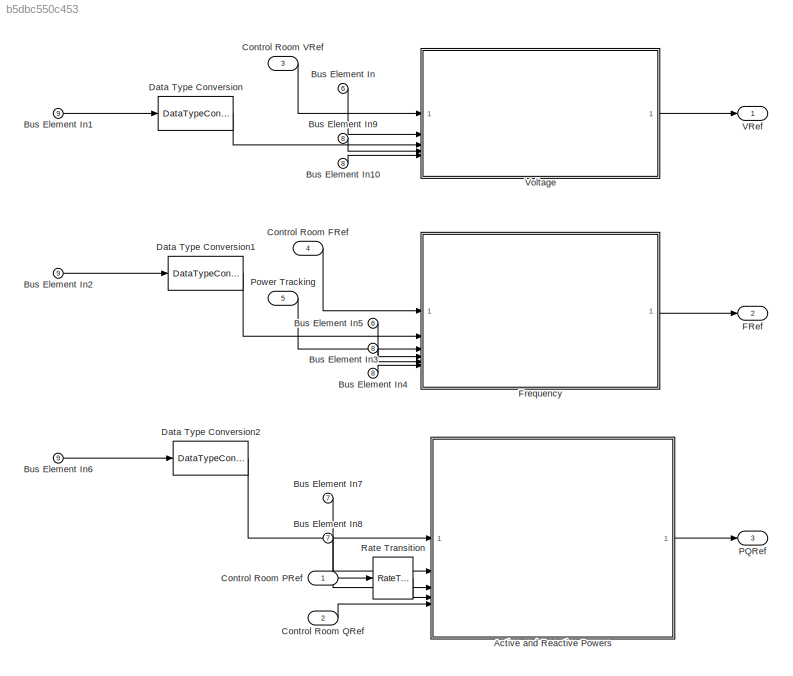
MODEL slx_b5dbc550c453
KIND model
CONFIG AbsTol = auto
CONFIG EnableMultiTasking = off
CONFIG FixedStep = auto
CONFIG MaxStep = auto
CONFIG MinStep = auto
CONFIG RelTol = 1e-3
CONFIG SampleTimeConstraint = Unconstrained
CONFIG SolverName = FixedStepAuto
CONFIG StartTime = 0.0
CONFIG StopTime = 10.0
WORKSPACE source: mxarray member
WORKSPACE GridFrequency = 60
WORKSPACE pLowerLimit = 0
WORKSPACE pUpperLimit = 0
WORKSPACE qLowerLimit = 0
WORKSPACE qUpperLimit = 0
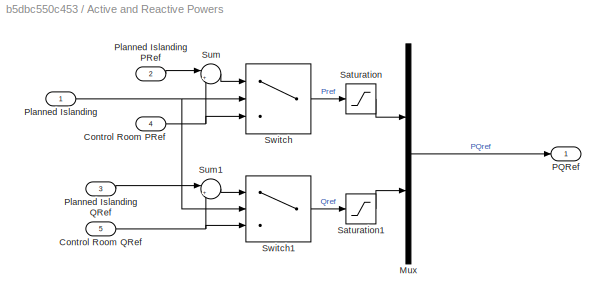
BLOCK [SubSystem] Active and Reactive Powers
BLOCK [Inport] Active and Reactive Powers/Control Room PRef
  Port = 4
BLOCK [Inport] Active and Reactive Powers/Control Room QRef
  Port = 5
BLOCK [Mux] Active and Reactive Powers/Mux
  DisplayOption = bar
  Inputs = 2
BLOCK [Outport] Active and Reactive Powers/PQRef
BLOCK [Inport] Active and Reactive Powers/Planned Islanding
BLOCK [Inport] Active and Reactive Powers/Planned Islanding PRef
  Port = 2
BLOCK [Inport] Active and Reactive Powers/Planned Islanding QRef
  Port = 3
BLOCK [Saturate] Active and Reactive Powers/Saturation
  LowerLimit = pLowerLimit
  UpperLimit = pUpperLimit
BLOCK [Saturate] Active and Reactive Powers/Saturation1
  LowerLimit = qLowerLimit
  UpperLimit = qUpperLimit
BLOCK [Sum] Active and Reactive Powers/Sum
  Inputs = |++
BLOCK [Sum] Active and Reactive Powers/Sum1
  Inputs = |++
BLOCK [Switch] Active and Reactive Powers/Switch
  Criteria = u2 > Threshold
  InputSameDT = off
  SaturateOnIntegerOverflow = off
  Threshold = 0.5
BLOCK [Switch] Active and Reactive Powers/Switch1
  Criteria = u2 > Threshold
  InputSameDT = off
  SaturateOnIntegerOverflow = off
  Threshold = 0.5
BLOCK [Inport] Bus Element In
  Port = 6
BLOCK [Inport] Bus Element In1
  Port = 9
BLOCK [Inport] Bus Element In10
  Port = 8
BLOCK [Inport] Bus Element In2
  Port = 9
BLOCK [Inport] Bus Element In3
  Port = 8
BLOCK [Inport] Bus Element In4
  Port = 8
BLOCK [Inport] Bus Element In5
  Port = 6
BLOCK [Inport] Bus Element In6
  Port = 9
BLOCK [Inport] Bus Element In7
  Port = 7
BLOCK [Inport] Bus Element In8
  Port = 7
BLOCK [Inport] Bus Element In9
  Port = 8
BLOCK [Inport] Control Room FRef
  Port = 4
BLOCK [Inport] Control Room PRef
BLOCK [Inport] Control Room QRef
  Port = 2
BLOCK [Inport] Control Room VRef
  Port = 3
BLOCK [DataTypeConversion] Data Type Conversion
  OutDataTypeStr = double
  RndMeth = Floor
  SaturateOnIntegerOverflow = off
BLOCK [DataTypeConversion] Data Type Conversion1
  OutDataTypeStr = double
  RndMeth = Floor
  SaturateOnIntegerOverflow = off
BLOCK [DataTypeConversion] Data Type Conversion2
  OutDataTypeStr = double
  RndMeth = Floor
  SaturateOnIntegerOverflow = off
BLOCK [Outport] FRef
  Port = 2
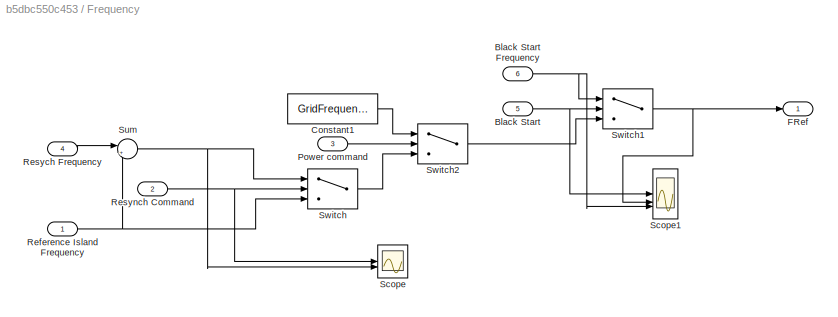
BLOCK [SubSystem] Frequency
BLOCK [Inport] Frequency/Black Start
  Port = 5
BLOCK [Inport] Frequency/Black Start Frequency
  Port = 6
BLOCK [Constant] Frequency/Constant1
  Value = GridFrequency
BLOCK [Outport] Frequency/FRef
BLOCK [Inport] Frequency/Power command
  Port = 3
BLOCK [Inport] Frequency/Reference Island Frequency
BLOCK [Inport] Frequency/Resych Frequency
  Port = 4
BLOCK [Inport] Frequency/Resynch Command
  Port = 2
BLOCK [Scope] Frequency/Scope
  DataLoggingVariableName = ScopeData2
  Floating = off
  GraphicalSettings = {"GraphicalSettings":{"LegacySettings":true,"Style":{"Style":{"AxesColor":"[0 0 0]","ChannelNames":[""],"ColorOrder":"[1 0.909803921568627 0.392156862745098;0.149019607843137 0.549019607843137 0.866666666666667;0.96078431372549 0.466666666666667 0.16078431372549;0.286274509803922 0.858823529411765 0.250980392156863;0.752941176470588 0.36078431372549 0.984313725490196;0.423529411764706 0.9568627450...<+457ch>
  NumInputPorts = 2
  WasSavedAsWebScope = on
BLOCK [Scope] Frequency/Scope1
  DataLoggingVariableName = ScopeData3
  Floating = off
  GraphicalSettings = {"GraphicalSettings":{"LegacySettings":true,"Style":{"Style":{"AxesColor":"[0 0 0]","ChannelNames":[""],"ColorOrder":"[1 0.909803921568627 0.392156862745098;0.149019607843137 0.549019607843137 0.866666666666667;0.96078431372549 0.466666666666667 0.16078431372549;0.286274509803922 0.858823529411765 0.250980392156863;0.752941176470588 0.36078431372549 0.984313725490196;0.423529411764706 0.9568627450...<+457ch>
  NumInputPorts = 3
  WasSavedAsWebScope = on
BLOCK [Sum] Frequency/Sum
  Inputs = |++
BLOCK [Switch] Frequency/Switch
  Criteria = u2 > Threshold
  InputSameDT = off
  SaturateOnIntegerOverflow = off
  Threshold = 0.5
BLOCK [Switch] Frequency/Switch1
  Criteria = u2 > Threshold
  InputSameDT = off
  SaturateOnIntegerOverflow = off
  Threshold = 0.5
BLOCK [Switch] Frequency/Switch2
  Criteria = u2 > Threshold
  InputSameDT = off
  SaturateOnIntegerOverflow = off
  Threshold = 0.5
BLOCK [Outport] PQRef
  Port = 3
BLOCK [Inport] Power Tracking
  Port = 5
BLOCK [RateTransition] Rate Transition
  OutPortSampleTime = 1e-3
BLOCK [Outport] VRef
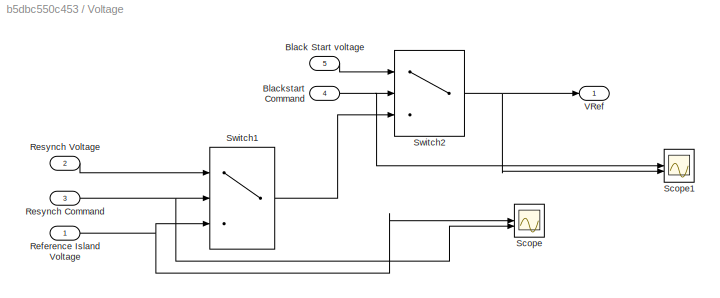
BLOCK [SubSystem] Voltage
BLOCK [Inport] Voltage/Black Start voltage
  Port = 5
BLOCK [Inport] Voltage/Blackstart Command
  Port = 4
BLOCK [Inport] Voltage/Reference Island Voltage
BLOCK [Inport] Voltage/Resynch Command
  Port = 3
BLOCK [Inport] Voltage/Resynch Voltage
  Port = 2
BLOCK [Scope] Voltage/Scope
  Floating = off
  GraphicalSettings = {"GraphicalSettings":{"LegacySettings":true,"Style":{"Style":{"CurrentConfiguration":"extmgr.ConfigurationSet","MinimizeControls":"false","PlotType":"Auto","Version":"2024a"}}}}
  NumInputPorts = 2
  WasSavedAsWebScope = on
BLOCK [Scope] Voltage/Scope1
  DataLoggingVariableName = ScopeData1
  Floating = off
  GraphicalSettings = {"GraphicalSettings":{"LegacySettings":true,"Style":{"Style":{"CurrentConfiguration":"extmgr.ConfigurationSet","MinimizeControls":"false","PlotType":"Auto","Version":"2024a"}}}}
  NumInputPorts = 2
  WasSavedAsWebScope = on
BLOCK [Switch] Voltage/Switch1
  Criteria = u2 > Threshold
  InputSameDT = off
  SaturateOnIntegerOverflow = off
  Threshold = 0.5
BLOCK [Switch] Voltage/Switch2
  Criteria = u2 > Threshold
  InputSameDT = off
  SaturateOnIntegerOverflow = off
  Threshold = 0.5
BLOCK [Outport] Voltage/VRef
NET Active and Reactive Powers/Control Room PRef:1 -> Active and Reactive Powers/Sum:2, Active and Reactive Powers/Switch:3
NET Active and Reactive Powers/Control Room QRef:1 -> Active and Reactive Powers/Sum1:2, Active and Reactive Powers/Switch1:3
LINE Active and Reactive Powers/Mux:1 -> Active and Reactive Powers/PQRef:1
LINE Active and Reactive Powers/Planned Islanding PRef:1 -> Active and Reactive Powers/Sum:1
LINE Active and Reactive Powers/Planned Islanding QRef:1 -> Active and Reactive Powers/Sum1:1
NET Active and Reactive Powers/Planned Islanding:1 -> Active and Reactive Powers/Switch1:2, Active and Reactive Powers/Switch:2
LINE Active and Reactive Powers/Saturation1:1 -> Active and Reactive Powers/Mux:2
LINE Active and Reactive Powers/Saturation:1 -> Active and Reactive Powers/Mux:1
LINE Active and Reactive Powers/Sum1:1 -> Active and Reactive Powers/Switch1:1
LINE Active and Reactive Powers/Sum:1 -> Active and Reactive Powers/Switch:1
LINE Active and Reactive Powers/Switch1:1 -> Active and Reactive Powers/Saturation1:1
LINE Active and Reactive Powers/Switch:1 -> Active and Reactive Powers/Saturation:1
LINE Active and Reactive Powers:1 -> PQRef:1
LINE Bus Element In10:1 -> Voltage:5
LINE Bus Element In1:1 -> Data Type Conversion:1
LINE Bus Element In2:1 -> Data Type Conversion1:1
LINE Bus Element In3:1 -> Frequency:5
LINE Bus Element In4:1 -> Frequency:6
LINE Bus Element In5:1 -> Frequency:4
LINE Bus Element In6:1 -> Data Type Conversion2:1
LINE Bus Element In7:1 -> Active and Reactive Powers:2
LINE Bus Element In8:1 -> Active and Reactive Powers:3
LINE Bus Element In9:1 -> Voltage:4
LINE Bus Element In:1 -> Voltage:2
LINE Control Room FRef:1 -> Frequency:1
LINE Control Room PRef:1 -> Rate Transition:1
LINE Control Room QRef:1 -> Active and Reactive Powers:5
LINE Control Room VRef:1 -> Voltage:1
LINE Data Type Conversion1:1 -> Frequency:2
LINE Data Type Conversion2:1 -> Active and Reactive Powers:1
LINE Data Type Conversion:1 -> Voltage:3
NET Frequency/Black Start Frequency:1 -> Frequency/Scope1:3, Frequency/Switch1:1
NET Frequency/Black Start:1 -> Frequency/Scope1:1, Frequency/Switch1:2
LINE Frequency/Constant1:1 -> Frequency/Switch2:1
LINE Frequency/Power command:1 -> Frequency/Switch2:2
NET Frequency/Reference Island Frequency:1 -> Frequency/Sum:2, Frequency/Switch:3
LINE Frequency/Resych Frequency:1 -> Frequency/Sum:1
NET Frequency/Resynch Command:1 -> Frequency/Scope:1, Frequency/Switch:2
NET Frequency/Sum:1 -> Frequency/Scope:2, Frequency/Switch:1
NET Frequency/Switch1:1 -> Frequency/FRef:1, Frequency/Scope1:2
LINE Frequency/Switch2:1 -> Frequency/Switch1:3
LINE Frequency/Switch:1 -> Frequency/Switch2:3
LINE Frequency:1 -> FRef:1
LINE Power Tracking:1 -> Frequency:3
LINE Rate Transition:1 -> Active and Reactive Powers:4
LINE Voltage/Black Start voltage:1 -> Voltage/Switch2:1
NET Voltage/Blackstart Command:1 -> Voltage/Scope1:1, Voltage/Switch2:2
NET Voltage/Reference Island Voltage:1 -> Voltage/Scope:1, Voltage/Switch1:3
NET Voltage/Resynch Command:1 -> Voltage/Scope:2, Voltage/Switch1:2
LINE Voltage/Resynch Voltage:1 -> Voltage/Switch1:1
LINE Voltage/Switch1:1 -> Voltage/Switch2:3
NET Voltage/Switch2:1 -> Voltage/Scope1:2, Voltage/VRef:1
LINE Voltage:1 -> VRef:1
note: NET lines group one-source signal fan-out (src -> all destinations, sorted); 1:1 wires keep LINE
